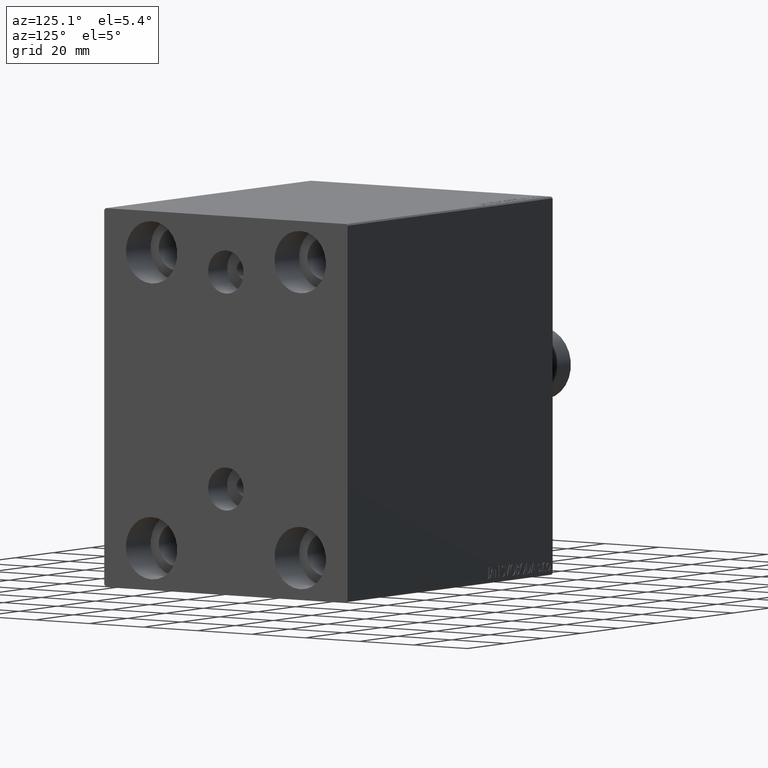
[diagram: clean part render]
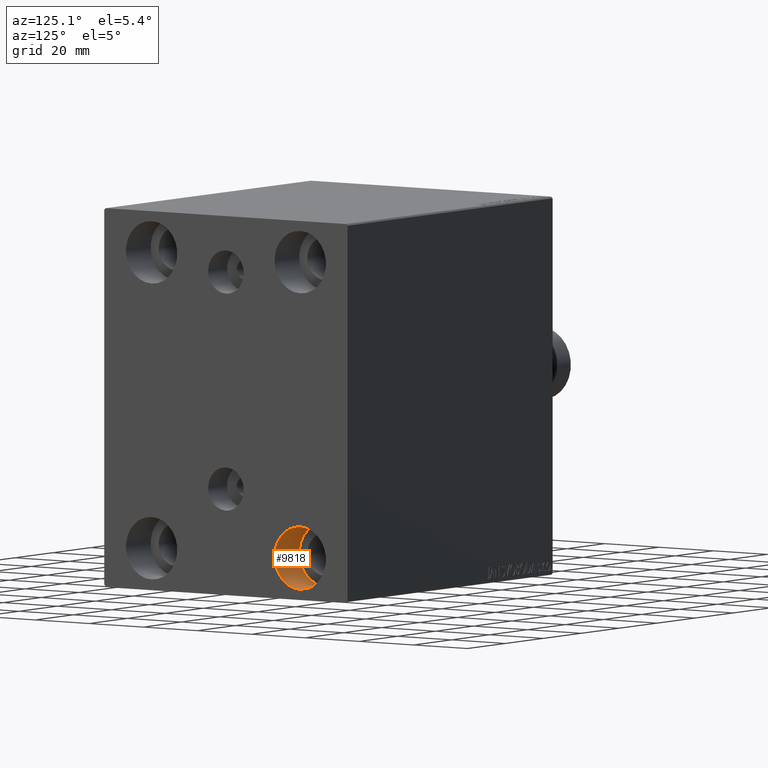
[diagram: same view with one face highlighted and labeled with its STEP entity id]
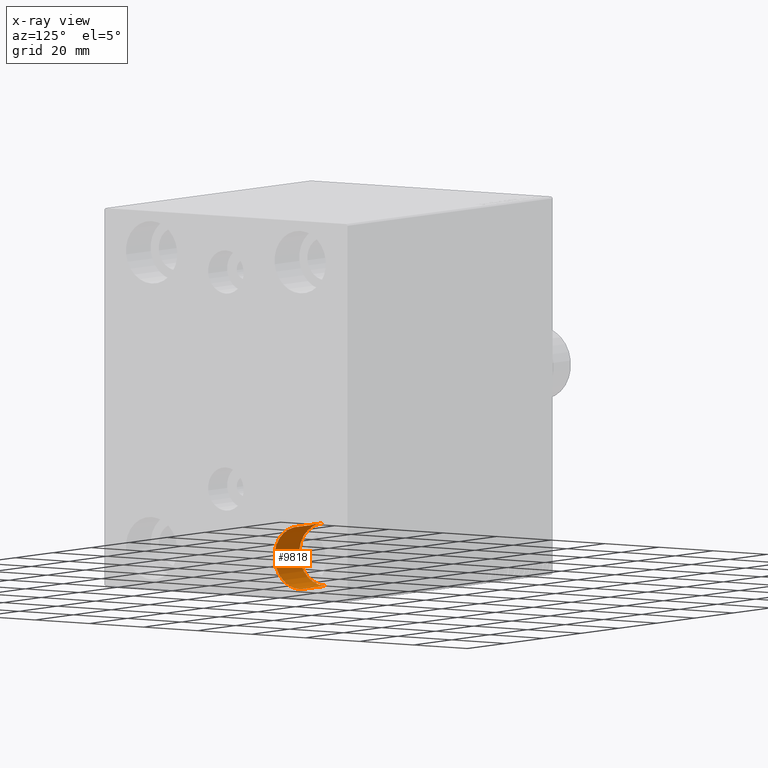
[diagram: x-ray of the same camera — body ghosted, the highlighted face saturated]
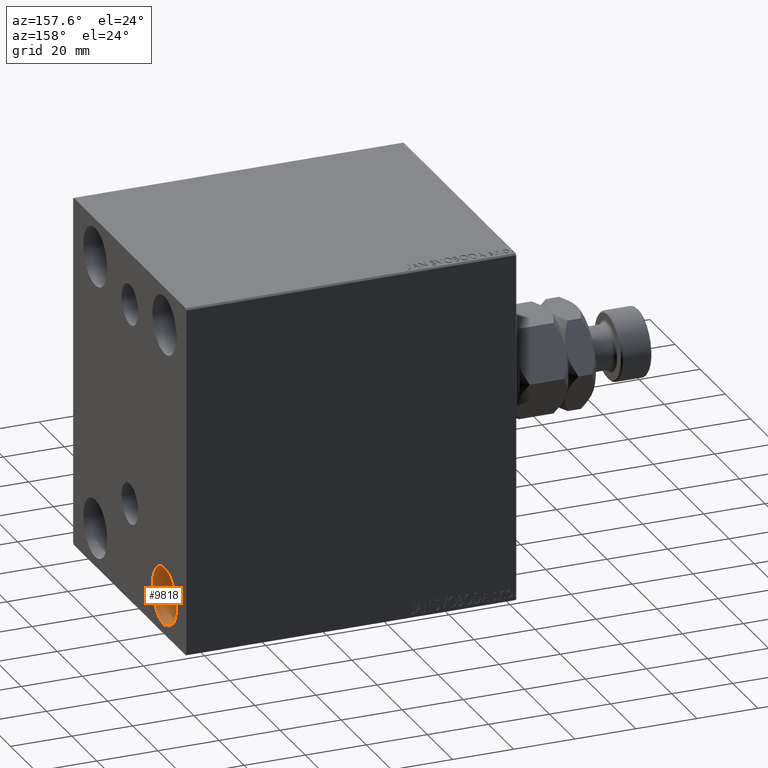
[diagram: same view with one face highlighted and labeled with its STEP entity id]
A machine part, auxiliary view. The second image highlights one B-rep face of the part: STEP entity #9818.
The next image is the same camera in x-ray: the body ghosted, the highlighted face saturated — about 0% of this face is hidden behind the body in this view.
A second angle (auxiliary view) of the same face is appended — the face is thin or edge-on in the first view.
In plain terms, the highlighted cylindrical surface (edge-blend (fillet) strip) has radius 9.5 mm, axis along (1, 0, 0).
Its self-contained STEP definition (entity closure, byte-faithful):
#776 = VERTEX_POINT ( 'NONE', #32943 ) ;
#2271 = DIRECTION ( 'NONE',  ( -1.000000000000000000, -0.000000000000000000, -0.000000000000000000 ) ) ;
#4008 = EDGE_CURVE ( 'NONE', #39232, #33253, #9750, .T. ) ;
#5801 = CARTESIAN_POINT ( 'NONE',  ( 108.0000000000000000, 27.49999999999998934, -54.49999999999998579 ) ) ;
#7092 = CARTESIAN_POINT ( 'NONE',  ( 95.00000000000000000, 27.49999999999998934, -54.49999999999998579 ) ) ;
#7228 = ORIENTED_EDGE ( 'NONE', *, *, #4008, .F. ) ;
#7453 = CARTESIAN_POINT ( 'NONE',  ( 95.00000000000000000, 27.49999999999998934, -44.99999999999998579 ) ) ;
#8201 = CARTESIAN_POINT ( 'NONE',  ( 108.0000000000000000, 27.49999999999998934, -35.49999999999998579 ) ) ;
#9539 = EDGE_LOOP ( 'NONE', ( #10476, #14170, #7228, #17130 ) ) ;
#9750 = CIRCLE ( 'NONE', #31754, 9.500000000000001776 ) ;
#9818 = ADVANCED_FACE ( 'NONE', ( #26141 ), #29352, .F. ) ;
#9920 = LINE ( 'NONE', #34524, #20853 ) ;
#10476 = ORIENTED_EDGE ( 'NONE', *, *, #32062, .T. ) ;
#12841 = EDGE_CURVE ( 'NONE', #776, #33253, #9920, .T. ) ;
#14012 = DIRECTION ( 'NONE',  ( 1.000000000000000000, -0.000000000000000000, -0.000000000000000000 ) ) ;
#14170 = ORIENTED_EDGE ( 'NONE', *, *, #12841, .T. ) ;
#14467 = CARTESIAN_POINT ( 'NONE',  ( 95.00000000000000000, 27.49999999999998934, -54.49999999999998579 ) ) ;
#15540 = DIRECTION ( 'NONE',  ( 0.000000000000000000, 0.000000000000000000, -1.000000000000000000 ) ) ;
#17130 = ORIENTED_EDGE ( 'NONE', *, *, #18911, .F. ) ;
#17358 = VECTOR ( 'NONE', #24124, 1000.000000000000000 ) ;
#17362 = VERTEX_POINT ( 'NONE', #14467 ) ;
#17559 = DIRECTION ( 'NONE',  ( -1.000000000000000000, -0.000000000000000000, -0.000000000000000000 ) ) ;
#18911 = EDGE_CURVE ( 'NONE', #17362, #39232, #20656, .T. ) ;
#19744 = CARTESIAN_POINT ( 'NONE',  ( 108.0000000000000000, 27.49999999999998934, -44.99999999999998579 ) ) ;
#20656 = LINE ( 'NONE', #7092, #17358 ) ;
#20853 = VECTOR ( 'NONE', #14012, 1000.000000000000000 ) ;
#21250 = DIRECTION ( 'NONE',  ( 0.000000000000000000, 0.000000000000000000, 1.000000000000000000 ) ) ;
#22913 = CARTESIAN_POINT ( 'NONE',  ( 95.00000000000000000, 27.49999999999998934, -44.99999999999998579 ) ) ;
#24124 = DIRECTION ( 'NONE',  ( 1.000000000000000000, -0.000000000000000000, -0.000000000000000000 ) ) ;
#26141 = FACE_OUTER_BOUND ( 'NONE', #9539, .T. ) ;
#26427 = DIRECTION ( 'NONE',  ( 0.000000000000000000, 0.000000000000000000, 1.000000000000000000 ) ) ;
#29352 = CYLINDRICAL_SURFACE ( 'NONE', #37730, 9.500000000000001776 ) ;
#31754 = AXIS2_PLACEMENT_3D ( 'NONE', #19744, #2271, #26427 ) ;
#32062 = EDGE_CURVE ( 'NONE', #17362, #776, #44095, .T. ) ;
#32943 = CARTESIAN_POINT ( 'NONE',  ( 95.00000000000000000, 27.49999999999998934, -35.49999999999998579 ) ) ;
#33253 = VERTEX_POINT ( 'NONE', #8201 ) ;
#33260 = DIRECTION ( 'NONE',  ( 1.000000000000000000, -0.000000000000000000, -0.000000000000000000 ) ) ;
#34524 = CARTESIAN_POINT ( 'NONE',  ( 95.00000000000000000, 27.49999999999998934, -35.49999999999998579 ) ) ;
#35995 = AXIS2_PLACEMENT_3D ( 'NONE', #7453, #17559, #21250 ) ;
#37730 = AXIS2_PLACEMENT_3D ( 'NONE', #22913, #33260, #15540 ) ;
#39232 = VERTEX_POINT ( 'NONE', #5801 ) ;
#44095 = CIRCLE ( 'NONE', #35995, 9.500000000000001776 ) ;